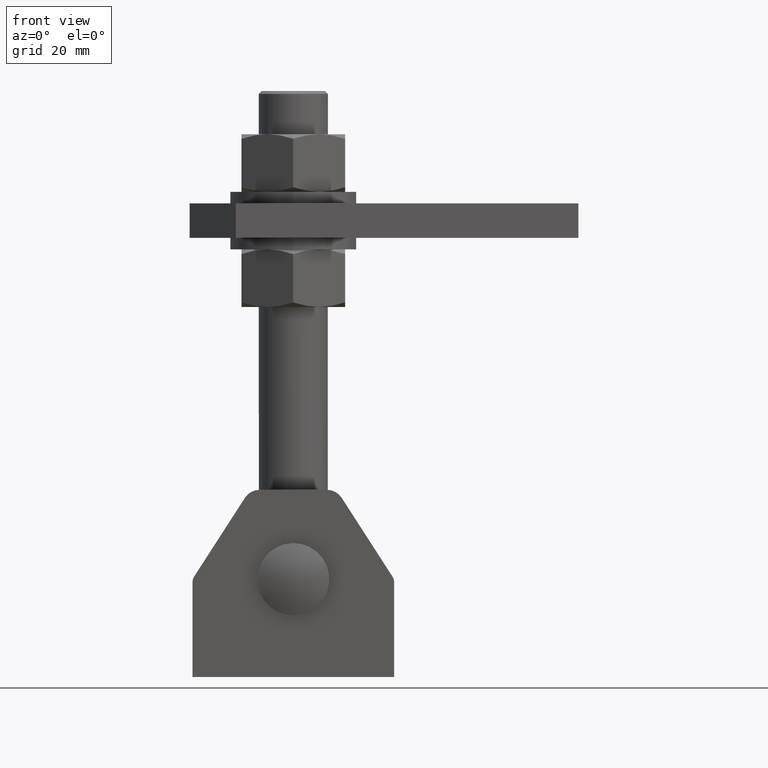
[diagram: clean part render]
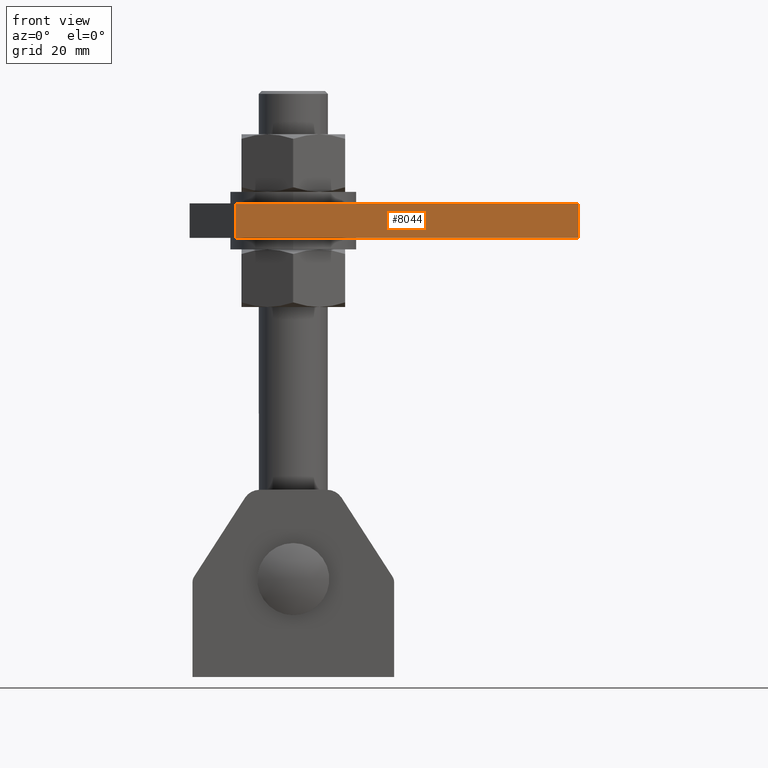
[diagram: same view with one face highlighted and labeled with its STEP entity id]
A machine part, front view. The second image highlights one B-rep face of the part: STEP entity #8044.
In plain terms, the highlighted planar face has unit normal (0, 1, 0).
Its self-contained STEP definition (entity closure, byte-faithful):
#80 = VERTEX_POINT ( 'NONE', #2937 ) ;
#358 = CARTESIAN_POINT ( 'NONE',  ( -51.49999999999997868, -35.00000000000000000, -6.000000000000000000 ) ) ;
#1324 = CARTESIAN_POINT ( 'NONE',  ( -67.49999999999998579, -35.00000000000000000, 6.000000000000000000 ) ) ;
#1925 = ORIENTED_EDGE ( 'NONE', *, *, #13808, .F. ) ;
#2116 = FACE_OUTER_BOUND ( 'NONE', #2216, .T. ) ;
#2216 = EDGE_LOOP ( 'NONE', ( #14788, #4728, #4395, #1925 ) ) ;
#2363 = DIRECTION ( 'NONE',  ( 0.000000000000000000, 1.000000000000000000, 0.000000000000000000 ) ) ;
#2937 = CARTESIAN_POINT ( 'NONE',  ( 67.50000000000001421, -35.00000000000000000, 6.000000000000000000 ) ) ;
#3182 = VECTOR ( 'NONE', #4477, 1000.000000000000000 ) ;
#3494 = DIRECTION ( 'NONE',  ( 0.000000000000000000, -0.000000000000000000, 1.000000000000000000 ) ) ;
#4147 = CARTESIAN_POINT ( 'NONE',  ( 67.50000000000001421, -35.00000000000000000, 6.000000000000000000 ) ) ;
#4395 = ORIENTED_EDGE ( 'NONE', *, *, #5322, .T. ) ;
#4477 = DIRECTION ( 'NONE',  ( 1.000000000000000000, 0.000000000000000000, 0.000000000000000000 ) ) ;
#4598 = AXIS2_PLACEMENT_3D ( 'NONE', #1324, #2363, #3494 ) ;
#4728 = ORIENTED_EDGE ( 'NONE', *, *, #6619, .T. ) ;
#4896 = VERTEX_POINT ( 'NONE', #358 ) ;
#5322 = EDGE_CURVE ( 'NONE', #4896, #11665, #5528, .T. ) ;
#5528 = LINE ( 'NONE', #11437, #3182 ) ;
#5903 = PLANE ( 'NONE',  #4598 ) ;
#6619 = EDGE_CURVE ( 'NONE', #12683, #4896, #7855, .T. ) ;
#7660 = DIRECTION ( 'NONE',  ( -0.000000000000000000, -0.000000000000000000, -1.000000000000000000 ) ) ;
#7855 = LINE ( 'NONE', #9214, #9835 ) ;
#7906 = CARTESIAN_POINT ( 'NONE',  ( 67.50000000000001421, -35.00000000000000000, -6.000000000000000000 ) ) ;
#8044 = ADVANCED_FACE ( 'NONE', ( #2116 ), #5903, .F. ) ;
#8148 = DIRECTION ( 'NONE',  ( 0.000000000000000000, 0.000000000000000000, -1.000000000000000000 ) ) ;
#9214 = CARTESIAN_POINT ( 'NONE',  ( -51.49999999999997868, -35.00000000000000000, 6.000000000000000000 ) ) ;
#9826 = VECTOR ( 'NONE', #7660, 1000.000000000000000 ) ;
#9835 = VECTOR ( 'NONE', #8148, 1000.000000000000000 ) ;
#10005 = LINE ( 'NONE', #11125, #10029 ) ;
#10029 = VECTOR ( 'NONE', #12211, 1000.000000000000000 ) ;
#11125 = CARTESIAN_POINT ( 'NONE',  ( -67.49999999999998579, -35.00000000000000000, 6.000000000000000000 ) ) ;
#11437 = CARTESIAN_POINT ( 'NONE',  ( -67.49999999999998579, -35.00000000000000000, -6.000000000000000000 ) ) ;
#11665 = VERTEX_POINT ( 'NONE', #7906 ) ;
#12211 = DIRECTION ( 'NONE',  ( 1.000000000000000000, 0.000000000000000000, 0.000000000000000000 ) ) ;
#12370 = LINE ( 'NONE', #4147, #9826 ) ;
#12683 = VERTEX_POINT ( 'NONE', #13810 ) ;
#13575 = EDGE_CURVE ( 'NONE', #12683, #80, #10005, .T. ) ;
#13808 = EDGE_CURVE ( 'NONE', #80, #11665, #12370, .T. ) ;
#13810 = CARTESIAN_POINT ( 'NONE',  ( -51.49999999999997868, -35.00000000000000000, 6.000000000000000000 ) ) ;
#14788 = ORIENTED_EDGE ( 'NONE', *, *, #13575, .F. ) ;